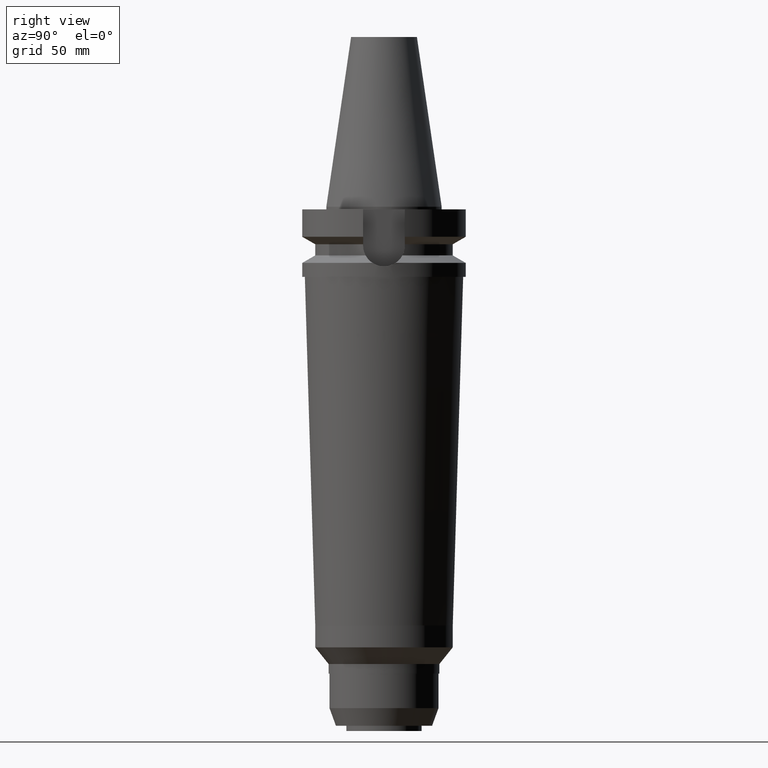
[diagram: clean part render]
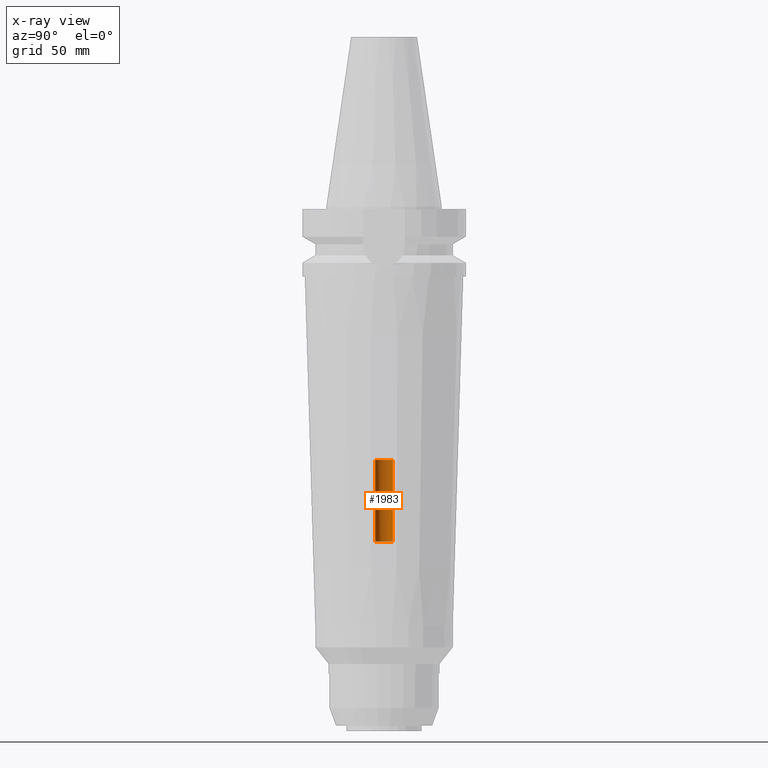
[diagram: x-ray — body ghosted, one internal face saturated and labeled with its STEP entity id]
A machine part, right view, then the same camera in x-ray: the body is ghosted and one INTERNAL B-rep face — a face not visible from any outside direction — is saturated and labeled: STEP entity #1983.
In plain terms, the highlighted cylindrical surface (edge-blend (fillet) strip) has radius 3.4 mm, axis along (0, 0, 1).
Its self-contained STEP definition (entity closure, byte-faithful):
#884=CARTESIAN_POINT('',(0.E0,0.E0,-1.29E2));
#885=DIRECTION('',(0.E0,0.E0,-1.E0));
#886=DIRECTION('',(0.E0,-1.E0,0.E0));
#887=AXIS2_PLACEMENT_3D('',#884,#885,#886);
#900=DIRECTION('',(0.E0,0.E0,1.E0));
#901=VECTOR('',#900,3.14E1);
#902=CARTESIAN_POINT('',(0.E0,-3.4E0,-1.29E2));
#903=LINE('',#902,#901);
#907=DIRECTION('',(0.E0,0.E0,1.E0));
#908=VECTOR('',#907,3.14E1);
#909=CARTESIAN_POINT('',(0.E0,3.4E0,-1.29E2));
#910=LINE('',#909,#908);
#938=CARTESIAN_POINT('',(0.E0,0.E0,-9.76E1));
#939=DIRECTION('',(0.E0,0.E0,1.E0));
#940=DIRECTION('',(0.E0,1.E0,0.E0));
#941=AXIS2_PLACEMENT_3D('',#938,#939,#940);
#1235=CARTESIAN_POINT('',(0.E0,-3.4E0,-1.29E2));
#1236=CARTESIAN_POINT('',(0.E0,3.4E0,-1.29E2));
#1237=VERTEX_POINT('',#1235);
#1238=VERTEX_POINT('',#1236);
#1239=CARTESIAN_POINT('',(0.E0,3.4E0,-9.76E1));
#1240=VERTEX_POINT('',#1239);
#1241=CARTESIAN_POINT('',(0.E0,-3.4E0,-9.76E1));
#1242=VERTEX_POINT('',#1241);
#1969=CARTESIAN_POINT('',(0.E0,0.E0,-2.1537E2));
#1970=DIRECTION('',(0.E0,0.E0,1.E0));
#1971=DIRECTION('',(0.E0,1.E0,0.E0));
#1972=AXIS2_PLACEMENT_3D('',#1969,#1970,#1971);
#1973=CYLINDRICAL_SURFACE('',#1972,3.4E0);
#1975=ORIENTED_EDGE('',*,*,#1974,.F.);
#1976=ORIENTED_EDGE('',*,*,#1962,.F.);
#1978=ORIENTED_EDGE('',*,*,#1977,.T.);
#1980=ORIENTED_EDGE('',*,*,#1979,.F.);
#1981=EDGE_LOOP('',(#1975,#1976,#1978,#1980));
#1982=FACE_OUTER_BOUND('',#1981,.F.);
#888=CIRCLE('',#887,3.4E0);
#942=CIRCLE('',#941,3.4E0);
#1962=EDGE_CURVE('',#1237,#1238,#888,.T.);
#1974=EDGE_CURVE('',#1238,#1240,#910,.T.);
#1977=EDGE_CURVE('',#1237,#1242,#903,.T.);
#1979=EDGE_CURVE('',#1240,#1242,#942,.T.);
#1983=ADVANCED_FACE('',(#1982),#1973,.F.);